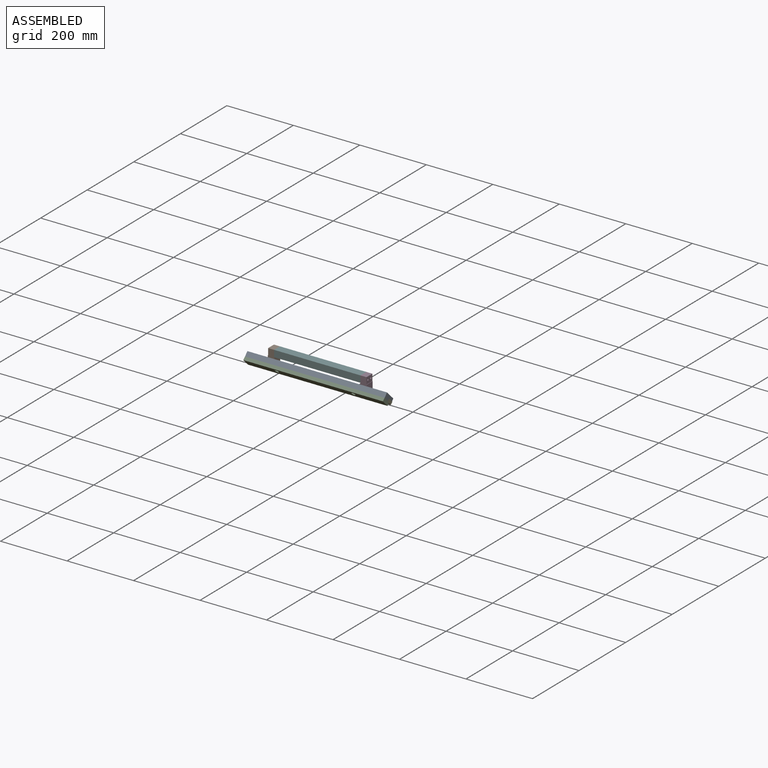
[diagram: assembled view]
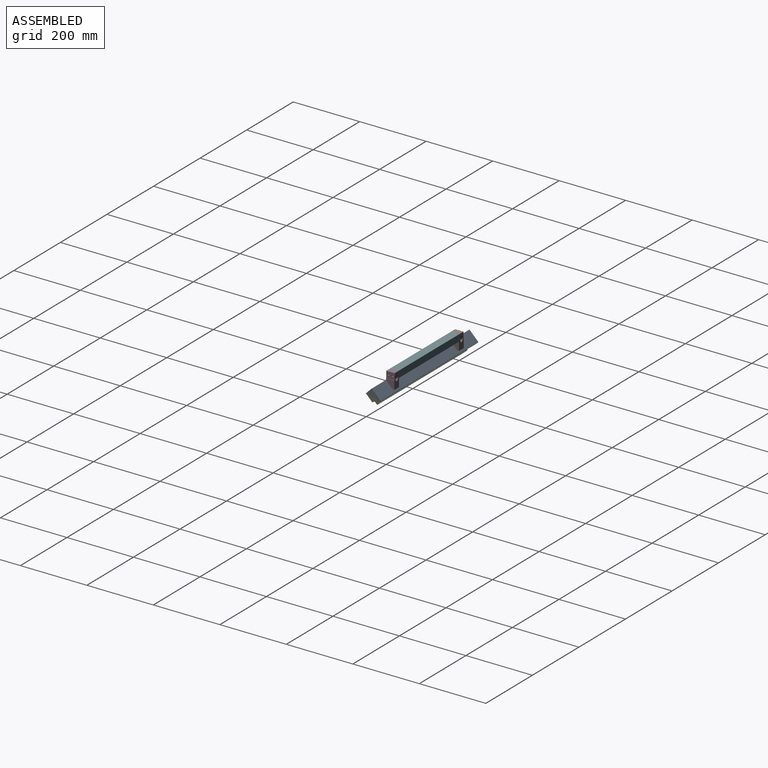
[diagram: assembled view, second angle]
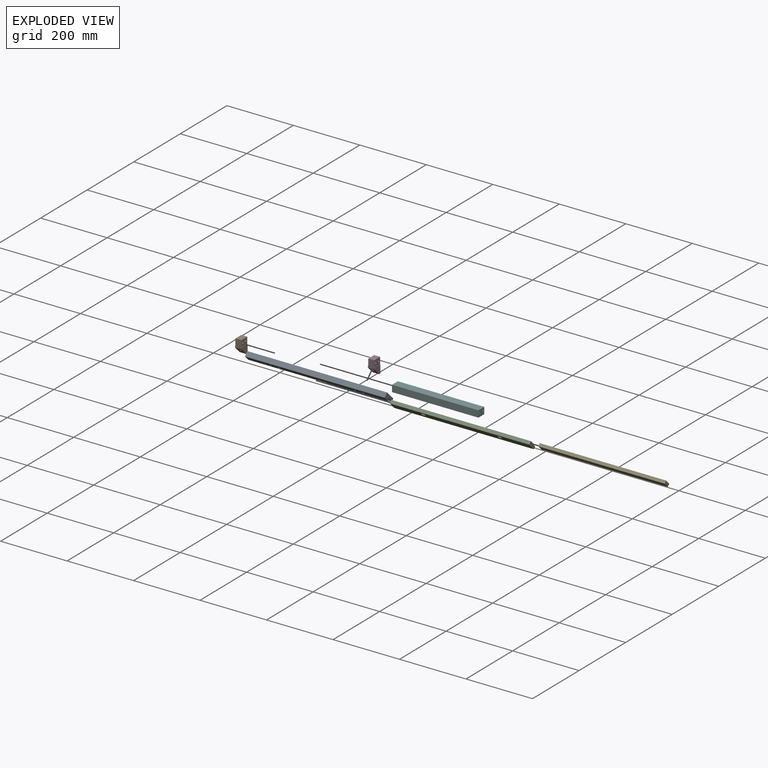
[diagram: exploded view]
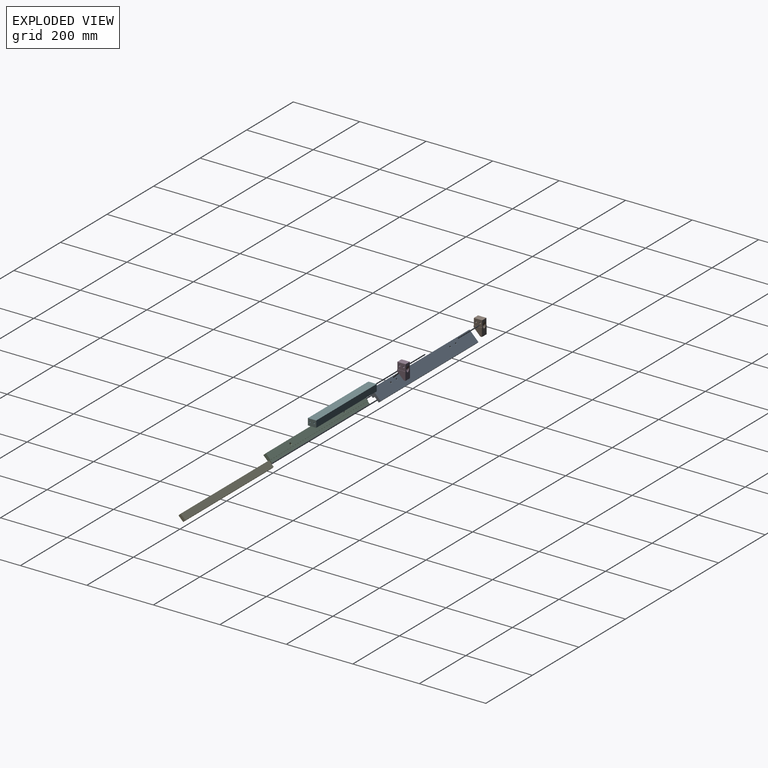
[diagram: exploded view, second angle]
ASSEMBLY  parts=6 mates=5
PART A: 12 faces, bbox 420x32x36.9 mm
  f0: plane 420x12.99mm, normal (0,-0.5,0.87), area 6300mm2, adj f1,f5,f6,f7
  f1: plane 420x17.32mm, normal (0,-0.87,-0.5), area 8321.5mm2, adj f0,f2,f6,f7,f8,f9,f10,f11
  f2: plane 420x6.06mm, normal (0,0.5,-0.87), area 2940mm2, adj f1,f3,f6,f7
  f3: plane 420x15.59mm, normal (0,-0.87,-0.5), area 7560mm2, adj f2,f4,f6,f7
  f4: plane 420x6.93mm, normal (0,0.5,-0.87), area 3360mm2, adj f3,f5,f6,f7
  f5: plane 420x32.91mm, normal (0,0.87,0.5), area 15881.5mm2, adj f0,f4,f6,f7,f8,f9,f10,f11
  f6: plane 36.91x31.99mm, normal (-1,0,0), area 444mm2, adj f0,f1,f2,f3,f4,f5
  f7: plane 36.91x31.99mm, normal (1,0,0), area 444mm2, adj f0,f1,f2,f3,f4,f5
  f8: cylinder r=2.5mm len=15.49mm, axis (0,0.87,0.5), area 235.6mm2, adj f1,f5
  f9: cylinder r=2.5mm len=15.49mm, axis (0,0.87,0.5), area 235.6mm2, adj f1,f5
  f10: cylinder r=2.5mm len=15.49mm, axis (0,0.87,0.5), area 235.6mm2, adj f1,f5
  f11: cylinder r=2.5mm len=15.49mm, axis (0,0.87,0.5), area 235.6mm2, adj f1,f5
PART B: 16 faces, bbox 22.5x36x47.5 mm
  f0: plane 25x20mm, normal (0,-1,0), area 460mm2, adj f2,f3,f4,f5,f6,f7,f8,f10
  f1: plane 47.52x22.52mm, normal (0,1,0), area 700.1mm2, adj f2,f3,f4,f5,f6,f7,f8,f9
  f2: plane 25x20mm, normal (-1,0,0), area 452.5mm2, adj f0,f1,f4,f6,f14,f15
  f3: plane 25x20mm, normal (1,0,0), area 452.5mm2, adj f0,f1,f4,f5,f14,f15
  f4: plane 25x18mm, normal (0,0,1), area 450mm2, adj f0,f1,f2,f3
  f5: plane 25x1mm, normal (0,0,1), area 25mm2, adj f0,f1,f3,f8
  f6: plane 25x1mm, normal (0,0,1), area 25mm2, adj f0,f1,f2,f7
  f7: plane 25x25mm, normal (-1,0,0), area 425mm2, adj f0,f1,f6,f9,f10
  f8: plane 25x25mm, normal (1,0,0), area 425mm2, adj f0,f1,f5,f9,f10
  f9: plane 20x5mm, normal (0,0,-1), area 100mm2, adj f1,f7,f8,f10
  f10: plane 20x20mm, normal (0,-0.71,-0.71), area 532.5mm2, adj f0,f7,f8,f9,f11
  f11: cylinder r=3.25mm len=14.5mm, axis (0,0.71,0.71), area 285.9mm2, adj f10,f12
  f12: plane 12x8.49mm, normal (0,0.71,0.71), area 79.9mm2, adj f11,f13
  f13: cylinder r=6mm len=19.63mm, axis (0,0.71,0.71), area 367.8mm2, adj f1,f12
  f14: cylinder r=2.75mm len=18mm, axis (1,0,0), area 311mm2, adj f2,f3
  f15: cylinder r=2.75mm len=18mm, axis (1,0,0), area 311mm2, adj f2,f3
PART C: 14 faces, bbox 420x20.9x29.2 mm
  f0: plane 420x24.25mm, normal (0,-0.87,-0.5), area 11533.8mm2, adj f1,f5,f6,f7,f10,f13
  f1: plane 420x6.93mm, normal (0,0.5,-0.87), area 3360mm2, adj f0,f2,f6,f7
  f2: plane 420x6.93mm, normal (0,0.87,0.5), area 3360mm2, adj f1,f3,f6,f7
  f3: plane 420x1.73mm, normal (0,0.5,-0.87), area 840mm2, adj f2,f4,f6,f7
  f4: plane 420x17.32mm, normal (0,0.87,0.5), area 8323mm2, adj f3,f5,f6,f7,f8,f11
  f5: plane 420x8.66mm, normal (0,-0.5,0.87), area 4200mm2, adj f0,f4,f6,f7
  f6: plane 29.25x20.93mm, normal (-1,0,0), area 264mm2, adj f0,f1,f2,f3,f4,f5
  f7: plane 29.25x20.93mm, normal (1,0,0), area 264mm2, adj f0,f1,f2,f3,f4,f5
  f8: cylinder r=3.5mm len=7.56mm, axis (0,-0.87,-0.5), area 66mm2, adj f4,f9
  f9: plane 12x10.39mm, normal (0,-0.87,-0.5), area 74.6mm2, adj f8,f10
  f10: cylinder r=6mm len=13.89mm, axis (0,-0.87,-0.5), area 263.9mm2, adj f0,f9
  f11: cylinder r=3.5mm len=7.56mm, axis (0,-0.87,-0.5), area 66mm2, adj f4,f12
  f12: plane 12x10.39mm, normal (0,-0.87,-0.5), area 74.6mm2, adj f11,f13
  f13: cylinder r=6mm len=13.89mm, axis (0,-0.87,-0.5), area 263.9mm2, adj f0,f12
PART D: same geometry as B
PART E: 6 faces, bbox 380x17.8x21.8 mm
  f0: plane 380x7.79mm, normal (0,-0.5,0.87), area 3420mm2, adj f1,f3,f4,f5
  f1: plane 380x17.32mm, normal (0,-0.87,-0.5), area 7600mm2, adj f0,f2,f4,f5
  f2: plane 380x7.79mm, normal (0,0.5,-0.87), area 3420mm2, adj f1,f3,f4,f5
  f3: plane 380x17.32mm, normal (0,0.87,0.5), area 7600mm2, adj f0,f2,f4,f5
  f4: plane 21.82x17.79mm, normal (-1,0,0), area 180mm2, adj f0,f1,f2,f3
  f5: plane 21.82x17.79mm, normal (1,0,0), area 180mm2, adj f0,f1,f2,f3
PART F: 14 faces, bbox 260x25x20 mm
  f0: plane 25x20mm, normal (-1,0,0), area 472.3mm2, adj f1,f3,f4,f5,f11,f13
  f1: plane 260x25mm, normal (0,0,-1), area 6500mm2, adj f0,f2,f4,f5
  f2: plane 25x20mm, normal (1,0,0), area 472.3mm2, adj f1,f3,f4,f5,f7,f9
  f3: plane 260x25mm, normal (0,0,1), area 6500mm2, adj f0,f2,f4,f5
  f4: plane 260x20mm, normal (0,-1,0), area 5200mm2, adj f0,f1,f2,f3
  f5: plane 260x20mm, normal (0,1,0), area 5200mm2, adj f0,f1,f2,f3
  f6: cone r=0mm half-angle=59deg, axis (1,0,0), area 16.2mm2, adj f7
  f7: cylinder r=2.1mm len=13.2mm, axis (1,0,0), area 174.2mm2, adj f2,f6
  f8: cone r=0mm half-angle=59deg, axis (1,0,0), area 16.2mm2, adj f9
  f9: cylinder r=2.1mm len=13.2mm, axis (1,0,0), area 174.2mm2, adj f2,f8
  f10: cone r=0mm half-angle=59deg, axis (-1,0,0), area 16.2mm2, adj f11
  f11: cylinder r=2.1mm len=13.2mm, axis (-1,0,0), area 174.2mm2, adj f0,f10
  f12: cone r=0mm half-angle=59deg, axis (-1,0,0), area 16.2mm2, adj f13
  f13: cylinder r=2.1mm len=13.2mm, axis (-1,0,0), area 174.2mm2, adj f0,f12
PLACE A rot(axis=(1,0,0),15deg) t=(60,-4.48,4.41)mm
PLACE B t=(-149,-25,0)mm
PLACE C rot(axis=(1,0,0),15deg) t=(60,-4.48,4.41)mm
PLACE D t=(129,-25,0)mm
PLACE E rot(axis=(1,0,0),15deg) t=(60,-4.48,4.41)mm
PLACE F at identity fixed
MATE fastened E.f5 <-> A.f7  axis (1,0,0) through (340,-16.8,-24.52)mm
MATE fastened D.f15 <-> F.f6  axis (-1,0,0) through (260,-18.75,11)mm
MATE fastened A.f11 <-> D.f11  axis (0,0.71,0.71) through (269,-16.8,-13.2)mm
MATE fastened B.f15 <-> F.f6  axis (1,0,0) through (0,-18.75,11)mm
MATE fastened C.f7 <-> A.f7  axis (1,0,0) through (340,-35.89,-15.32)mm
